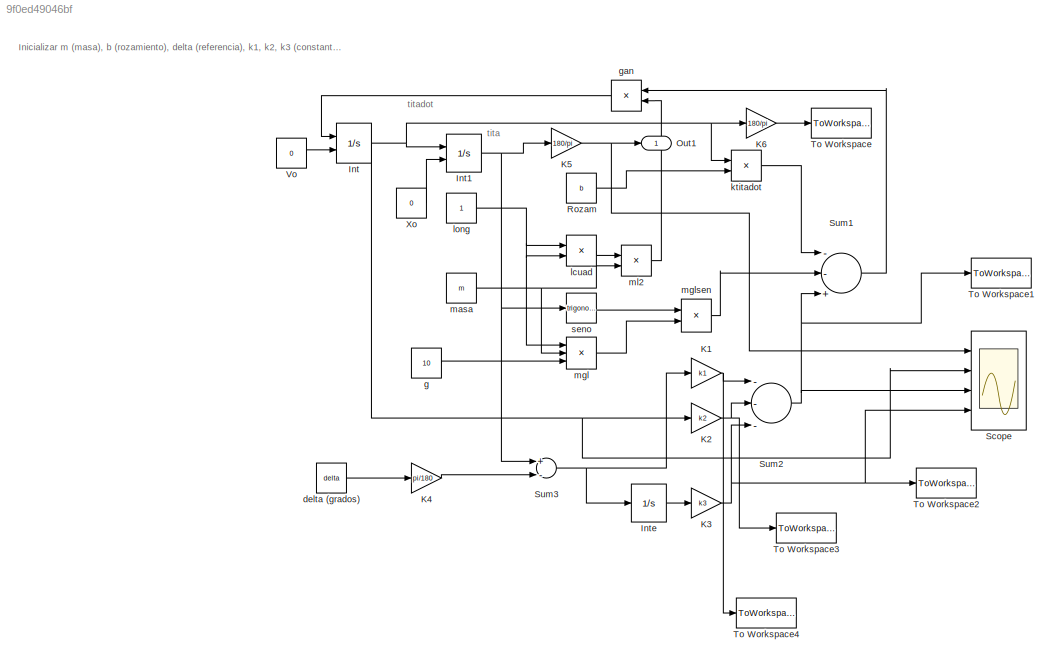
MODEL slx_9f0ed49046bf
KIND model
CONFIG AbsTol = auto
CONFIG FixedStep = auto
CONFIG MaxStep = 1e-4
CONFIG MinStep = auto
CONFIG RelTol = 1e-3
CONFIG SampleTimeConstraint = Unconstrained
CONFIG Solver = ode45
CONFIG SolverMode = Auto
CONFIG SolverName = ode45
CONFIG StartTime = 0.0
CONFIG StopTime = 20
BLOCK [Integrator] Int
  InitialCondition = -10
  InitialConditionSource = external
  Ports = [2, 1]
BLOCK [Integrator] Int1
  InitialCondition = 2.5
  InitialConditionSource = external
  Ports = [2, 1]
BLOCK [Integrator] Inte
  Ports = [1, 1]
BLOCK [Gain] K1
  Gain = k1
  OutDataTypeStr = Inherit: Inherit via internal rule
  ParamDataTypeStr = Inherit: Inherit via internal rule
  SaturateOnIntegerOverflow = off
BLOCK [Gain] K2
  Gain = k2
  OutDataTypeStr = Inherit: Inherit via internal rule
  ParamDataTypeStr = Inherit: Inherit via internal rule
  SaturateOnIntegerOverflow = off
BLOCK [Gain] K3
  Gain = k3
  OutDataTypeStr = Inherit: Inherit via internal rule
  ParamDataTypeStr = Inherit: Inherit via internal rule
  SaturateOnIntegerOverflow = off
BLOCK [Gain] K4
  Gain = pi/180
  OutDataTypeStr = Inherit: Inherit via internal rule
  ParamDataTypeStr = Inherit: Inherit via internal rule
  SaturateOnIntegerOverflow = off
BLOCK [Gain] K5
  Gain = 180/pi
  OutDataTypeStr = Inherit: Inherit via internal rule
  ParamDataTypeStr = Inherit: Inherit via internal rule
  SaturateOnIntegerOverflow = off
BLOCK [Gain] K6
  Gain = 180/pi
  OutDataTypeStr = Inherit: Inherit via internal rule
  ParamDataTypeStr = Inherit: Inherit via internal rule
  SaturateOnIntegerOverflow = off
BLOCK [Outport] Out1
  IconDisplay = Port number
BLOCK [Constant] Rozam
  Value = b
BLOCK [Scope] Scope
  NumInputPorts = 4
  Ports = [4]
  ScopeSpecificationString = Simulink.scopes.TimeScopeBlockCfg('CurrentConfiguration', extmgr.ConfigurationSet(extmgr.Configuration('Core','General UI',true),extmgr.Configuration('Core','Source UI',true),extmgr.Configuration('Sources','WiredSimulink',true,'DataLoggingSaveFormat','StructureWithTime','DataLoggingDecimation','1','DataLoggingDecimateData',true),extmgr.Configuration('Visuals','Time Domain',true,'SerializedDisplays...<+3644ch>
BLOCK [Sum] Sum1
  Inputs = --+
  Ports = [3, 1]
BLOCK [Sum] Sum2
  Inputs = ---
  Ports = [3, 1]
BLOCK [Sum] Sum3
  Inputs = +-
  Ports = [2, 1]
BLOCK [ToWorkspace] To Workspace
  MaxDataPoints = inf
  Ports = [1]
  SampleTime = -1
  VariableName = velocidad
BLOCK [ToWorkspace] To Workspace1
  MaxDataPoints = inf
  Ports = [1]
  SampleTime = -1
  VariableName = torque
BLOCK [ToWorkspace] To Workspace2
  MaxDataPoints = inf
  Ports = [1]
  SampleTime = -1
  VariableName = accint
BLOCK [ToWorkspace] To Workspace3
  MaxDataPoints = inf
  Ports = [1]
  SampleTime = -1
  VariableName = accderi
BLOCK [ToWorkspace] To Workspace4
  MaxDataPoints = inf
  Ports = [1]
  SampleTime = -1
  VariableName = accprop
BLOCK [Constant] Vo
  Value = 0
BLOCK [Constant] Xo
  Value = 0
BLOCK [Constant] delta (grados)
  Value = delta
BLOCK [Constant] g
  Value = 10
BLOCK [Product] gan
  InputSameDT = off
  Inputs = */
  OutDataTypeStr = Inherit: Inherit via internal rule
  Ports = [2, 1]
  RndMeth = Floor
  SaturateOnIntegerOverflow = off
BLOCK [Product] ktitadot
  InputSameDT = off
  OutDataTypeStr = Inherit: Inherit via internal rule
  Ports = [2, 1]
  SaturateOnIntegerOverflow = off
BLOCK [Product] lcuad
  InputSameDT = off
  OutDataTypeStr = Inherit: Inherit via internal rule
  Ports = [2, 1]
  SaturateOnIntegerOverflow = off
BLOCK [Constant] long
BLOCK [Constant] masa
  Value = m
BLOCK [Product] mgl
  InputSameDT = off
  Inputs = 3
  OutDataTypeStr = Inherit: Inherit via internal rule
  Ports = [3, 1]
  SaturateOnIntegerOverflow = off
BLOCK [Product] mglsen
  InputSameDT = off
  OutDataTypeStr = Inherit: Inherit via internal rule
  Ports = [2, 1]
  SaturateOnIntegerOverflow = off
BLOCK [Product] ml2
  InputSameDT = off
  OutDataTypeStr = Inherit: Inherit via internal rule
  Ports = [2, 1]
  SaturateOnIntegerOverflow = off
BLOCK [Trigonometry] seno
  Ports = [1, 1]
ANNOTATION (root): Inicializar m (masa), b (rozamiento), delta (referencia), k1, k2, k3 (constantes de diseño)
ANNOTATION (root): tita
ANNOTATION (root): titadot
NET Int1:1 -> K5:1, Sum3:1, seno:1
NET Int:1 -> Int1:1, K2:1, K6:1, Scope:2, ktitadot:1
LINE Inte:1 -> K3:1
NET K1:1 -> Sum2:1, To Workspace4:1
NET K2:1 -> Sum2:2, To Workspace3:1
NET K3:1 -> Scope:4, Sum2:3, To Workspace2:1
LINE K4:1 -> Sum3:2
NET K5:1 -> Out1:1, Scope:1
LINE K6:1 -> To Workspace:1
LINE Rozam:1 -> ktitadot:2
LINE Sum1:1 -> gan:1
NET Sum2:1 -> Scope:3, Sum1:3, To Workspace1:1
NET Sum3:1 -> Inte:1, K1:1
LINE Vo:1 -> Int:2
LINE Xo:1 -> Int1:2
LINE delta (grados):1 -> K4:1
LINE g:1 -> mgl:3
LINE gan:1 -> Int:1
LINE ktitadot:1 -> Sum1:1
LINE lcuad:1 -> ml2:1
NET long:1 -> lcuad:1, lcuad:2, mgl:1
NET masa:1 -> mgl:2, ml2:2
LINE mgl:1 -> mglsen:2
LINE mglsen:1 -> Sum1:2
LINE ml2:1 -> gan:2
LINE seno:1 -> mglsen:1
note: NET lines group one-source signal fan-out (src -> all destinations, sorted); 1:1 wires keep LINE
